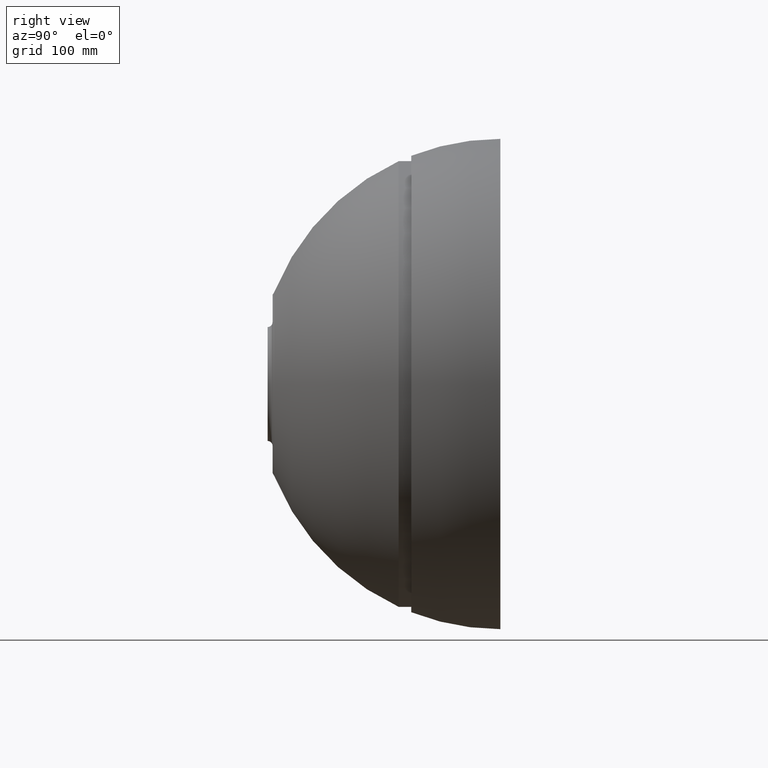
[diagram: clean part render]
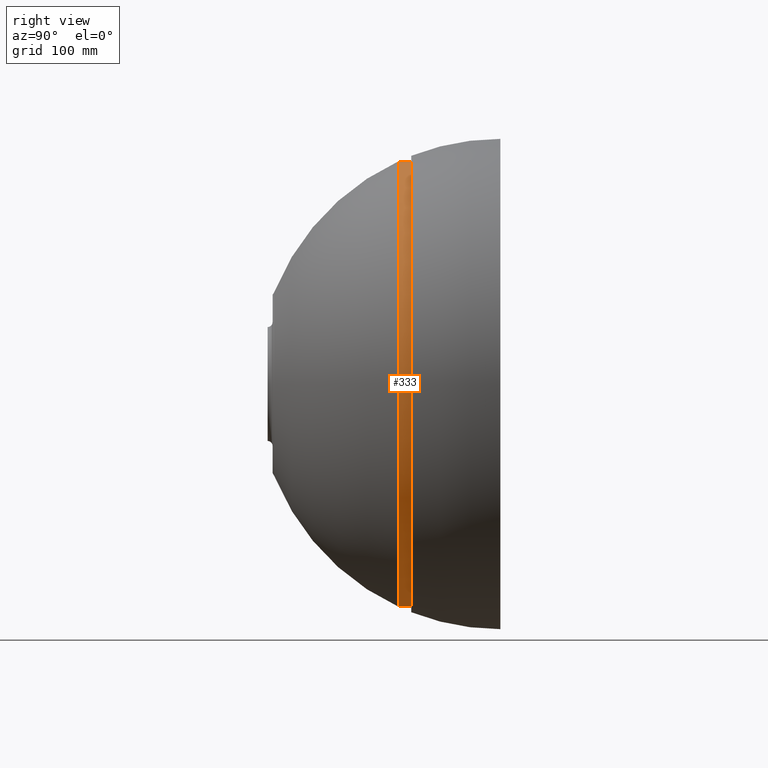
[diagram: same view with one face highlighted and labeled with its STEP entity id]
A machine part, right view. The second image highlights one B-rep face of the part: STEP entity #333.
In plain terms, the highlighted cylindrical surface (partial cylindrical patch) has radius 225 mm, axis along (-0, -1, -0).
Its self-contained STEP definition (entity closure, byte-faithful):
#30 = CARTESIAN_POINT ( 'NONE',  ( 0.0000000000000000000, 145.0000000000000000, 0.0000000000000000000 ) ) ;
#41 = VERTEX_POINT ( 'NONE', #474 ) ;
#48 = LINE ( 'NONE', #507, #378 ) ;
#57 = CIRCLE ( 'NONE', #340, 225.0000000000000000 ) ;
#131 = FACE_OUTER_BOUND ( 'NONE', #514, .T. ) ;
#139 = AXIS2_PLACEMENT_3D ( 'NONE', #539, #538, #540 ) ;
#151 = ORIENTED_EDGE ( 'NONE', *, *, #311, .T. ) ;
#155 = DIRECTION ( 'NONE',  ( 0.0000000000000000000, 0.0000000000000000000, -1.000000000000000000 ) ) ;
#163 = VECTOR ( 'NONE', #446, 1000.000000000000000 ) ;
#168 = VERTEX_POINT ( 'NONE', #416 ) ;
#194 = EDGE_CURVE ( 'NONE', #291, #168, #431, .T. ) ;
#275 = AXIS2_PLACEMENT_3D ( 'NONE', #518, #303, #155 ) ;
#290 = ORIENTED_EDGE ( 'NONE', *, *, #194, .F. ) ;
#291 = VERTEX_POINT ( 'NONE', #426 ) ;
#299 = DIRECTION ( 'NONE',  ( 0.0000000000000000000, 0.0000000000000000000, -1.000000000000000000 ) ) ;
#303 = DIRECTION ( 'NONE',  ( -0.0000000000000000000, -1.000000000000000000, -0.0000000000000000000 ) ) ;
#304 = VERTEX_POINT ( 'NONE', #573 ) ;
#311 = EDGE_CURVE ( 'NONE', #291, #41, #57, .T. ) ;
#333 = ADVANCED_FACE ( 'NONE', ( #131 ), #552, .T. ) ;
#340 = AXIS2_PLACEMENT_3D ( 'NONE', #30, #401, #299 ) ;
#378 = VECTOR ( 'NONE', #562, 1000.000000000000000 ) ;
#379 = EDGE_CURVE ( 'NONE', #168, #304, #604, .T. ) ;
#401 = DIRECTION ( 'NONE',  ( -0.0000000000000000000, -1.000000000000000000, -0.0000000000000000000 ) ) ;
#416 = CARTESIAN_POINT ( 'NONE',  ( 0.0000000000000000000, 132.3231030175650500, -224.9999999999999700 ) ) ;
#424 = EDGE_CURVE ( 'NONE', #41, #304, #48, .T. ) ;
#425 = CARTESIAN_POINT ( 'NONE',  ( 0.0000000000000000000, 0.0000000000000000000, -224.9999999999999700 ) ) ;
#426 = CARTESIAN_POINT ( 'NONE',  ( 0.0000000000000000000, 145.0000000000000000, -225.0000000000000000 ) ) ;
#431 = LINE ( 'NONE', #425, #163 ) ;
#446 = DIRECTION ( 'NONE',  ( -0.0000000000000000000, -1.000000000000000000, -0.0000000000000000000 ) ) ;
#474 = CARTESIAN_POINT ( 'NONE',  ( 2.755455298081544900E-014, 145.0000000000000000, 225.0000000000000300 ) ) ;
#507 = CARTESIAN_POINT ( 'NONE',  ( 2.755455298081544600E-014, 0.0000000000000000000, 224.9999999999999700 ) ) ;
#514 = EDGE_LOOP ( 'NONE', ( #151, #530, #577, #290 ) ) ;
#518 = CARTESIAN_POINT ( 'NONE',  ( 0.0000000000000000000, 0.0000000000000000000, 0.0000000000000000000 ) ) ;
#530 = ORIENTED_EDGE ( 'NONE', *, *, #424, .T. ) ;
#538 = DIRECTION ( 'NONE',  ( -0.0000000000000000000, -1.000000000000000000, -0.0000000000000000000 ) ) ;
#539 = CARTESIAN_POINT ( 'NONE',  ( 0.0000000000000000000, 132.3231030175650200, 0.0000000000000000000 ) ) ;
#540 = DIRECTION ( 'NONE',  ( 0.0000000000000000000, 0.0000000000000000000, -1.000000000000000000 ) ) ;
#552 = CYLINDRICAL_SURFACE ( 'NONE', #275, 224.9999999999999700 ) ;
#562 = DIRECTION ( 'NONE',  ( -0.0000000000000000000, -1.000000000000000000, -0.0000000000000000000 ) ) ;
#573 = CARTESIAN_POINT ( 'NONE',  ( 2.755455298081544300E-014, 132.3231030175650500, 224.9999999999999700 ) ) ;
#577 = ORIENTED_EDGE ( 'NONE', *, *, #379, .F. ) ;
#604 = CIRCLE ( 'NONE', #139, 224.9999999999999700 ) ;